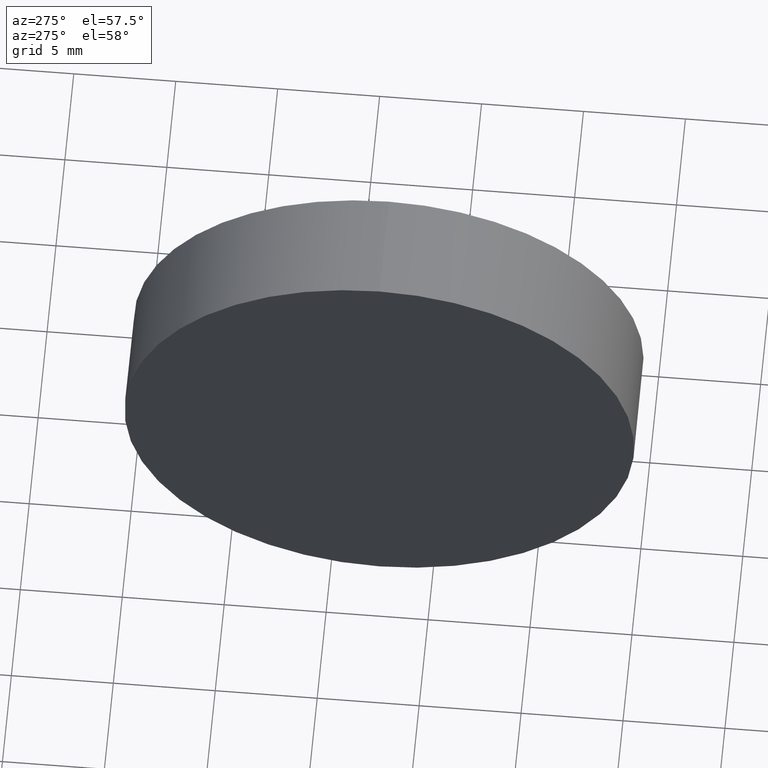
[diagram: clean part render]
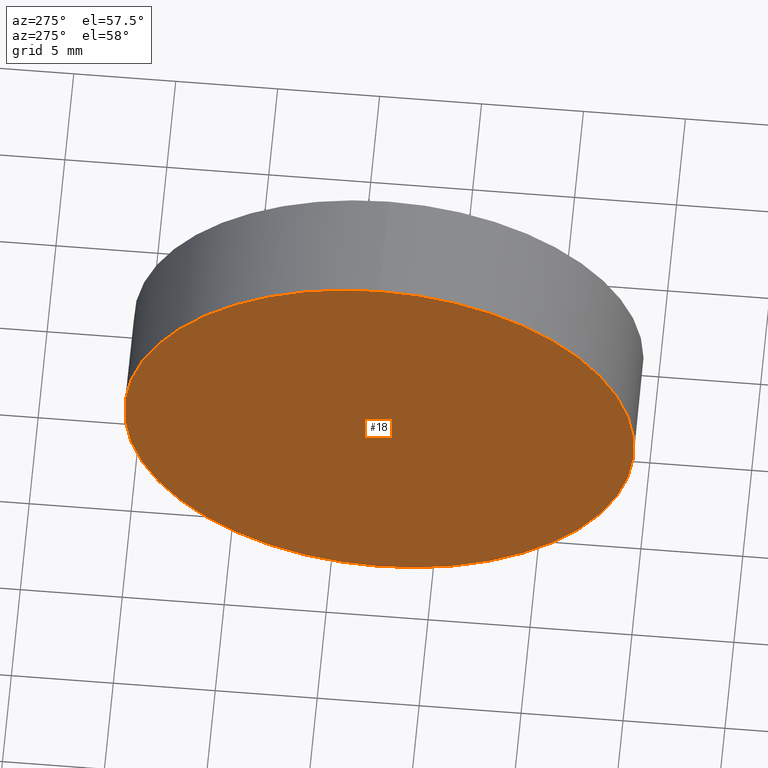
[diagram: same view with one face highlighted and labeled with its STEP entity id]
A machine part, auxiliary view. The second image highlights one B-rep face of the part: STEP entity #18.
In plain terms, the highlighted planar face has unit normal (1, 0, 0).
Its self-contained STEP definition (entity closure, byte-faithful):
#1 = CARTESIAN_POINT ( 'NONE',  ( 57.53233705252611700, 32.61076812922678400, 0.0000000000000000000 ) ) ;
#18 = ADVANCED_FACE ( 'NONE', ( #128 ), #99, .F. ) ;
#24 = DIRECTION ( 'NONE',  ( 0.0000000000000000000, 0.0000000000000000000, -1.000000000000000000 ) ) ;
#29 = CARTESIAN_POINT ( 'NONE',  ( 57.53233705252611700, 32.61076812922678400, 12.49999999999999600 ) ) ;
#33 = EDGE_LOOP ( 'NONE', ( #75, #101 ) ) ;
#55 = VERTEX_POINT ( 'NONE', #117 ) ;
#75 = ORIENTED_EDGE ( 'NONE', *, *, #109, .T. ) ;
#76 = AXIS2_PLACEMENT_3D ( 'NONE', #1, #83, #102 ) ;
#79 = EDGE_CURVE ( 'NONE', #55, #164, #104, .T. ) ;
#82 = AXIS2_PLACEMENT_3D ( 'NONE', #121, #85, #120 ) ;
#83 = DIRECTION ( 'NONE',  ( -1.000000000000000000, -0.0000000000000000000, -0.0000000000000000000 ) ) ;
#85 = DIRECTION ( 'NONE',  ( -1.000000000000000000, -0.0000000000000000000, -0.0000000000000000000 ) ) ;
#99 = PLANE ( 'NONE',  #165 ) ;
#101 = ORIENTED_EDGE ( 'NONE', *, *, #79, .T. ) ;
#102 = DIRECTION ( 'NONE',  ( 0.0000000000000000000, 0.0000000000000000000, 1.000000000000000000 ) ) ;
#104 = CIRCLE ( 'NONE', #76, 12.49999999999999600 ) ;
#109 = EDGE_CURVE ( 'NONE', #164, #55, #141, .T. ) ;
#114 = CARTESIAN_POINT ( 'NONE',  ( 57.53233705252611700, 32.61076812922678400, 0.0000000000000000000 ) ) ;
#115 = DIRECTION ( 'NONE',  ( 1.000000000000000000, 0.0000000000000000000, 0.0000000000000000000 ) ) ;
#117 = CARTESIAN_POINT ( 'NONE',  ( 57.53233705252611700, 32.61076812922678400, -12.49999999999999600 ) ) ;
#120 = DIRECTION ( 'NONE',  ( 0.0000000000000000000, 0.0000000000000000000, 1.000000000000000000 ) ) ;
#121 = CARTESIAN_POINT ( 'NONE',  ( 57.53233705252611700, 32.61076812922678400, 0.0000000000000000000 ) ) ;
#128 = FACE_OUTER_BOUND ( 'NONE', #33, .T. ) ;
#141 = CIRCLE ( 'NONE', #82, 12.49999999999999600 ) ;
#164 = VERTEX_POINT ( 'NONE', #29 ) ;
#165 = AXIS2_PLACEMENT_3D ( 'NONE', #114, #115, #24 ) ;